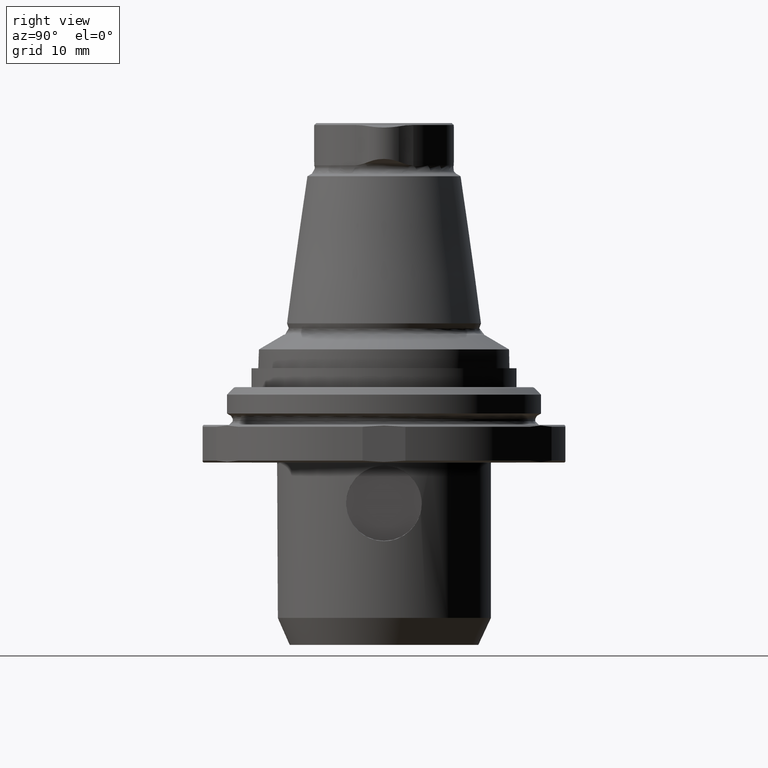
[diagram: clean part render]
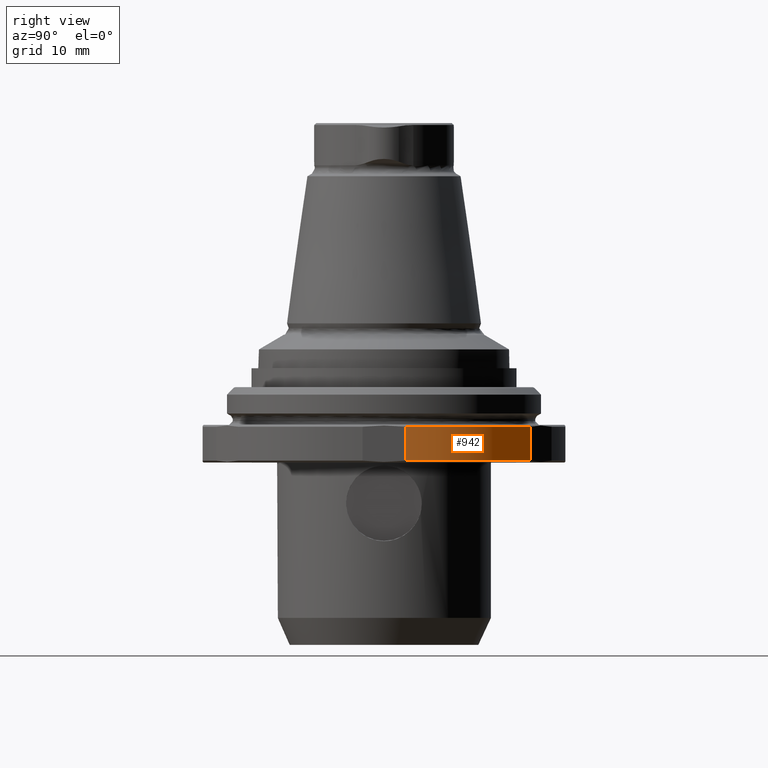
[diagram: same view with one face highlighted and labeled with its STEP entity id]
A machine part, right view. The second image highlights one B-rep face of the part: STEP entity #942.
In plain terms, the highlighted cylindrical surface (partial cylindrical patch) has radius 29 mm, axis along (-0, -0, -1).
Its self-contained STEP definition (entity closure, byte-faithful):
#31=LINE('',#1607,#59);
#32=LINE('',#1611,#60);
#59=VECTOR('',#1242,1000.);
#60=VECTOR('',#1247,1000.);
#138=CIRCLE('',#1034,29.);
#144=CIRCLE('',#1052,29.);
#262=ORIENTED_EDGE('',*,*,#483,.F.);
#263=ORIENTED_EDGE('',*,*,#484,.T.);
#264=ORIENTED_EDGE('',*,*,#458,.T.);
#265=ORIENTED_EDGE('',*,*,#482,.T.);
#458=EDGE_CURVE('',#586,#585,#138,.T.);
#482=EDGE_CURVE('',#585,#598,#31,.T.);
#483=EDGE_CURVE('',#599,#598,#144,.T.);
#484=EDGE_CURVE('',#599,#586,#32,.F.);
#585=VERTEX_POINT('',#1537);
#586=VERTEX_POINT('',#1539);
#598=VERTEX_POINT('',#1606);
#599=VERTEX_POINT('',#1610);
#730=EDGE_LOOP('',(#262,#263,#264,#265));
#830=FACE_BOUND('',#730,.T.);
#899=CYLINDRICAL_SURFACE('',#1051,29.);
#942=ADVANCED_FACE('',(#830),#899,.T.);
#1034=AXIS2_PLACEMENT_3D('',#1538,#1197,#1198);
#1051=AXIS2_PLACEMENT_3D('',#1608,#1243,#1244);
#1052=AXIS2_PLACEMENT_3D('',#1609,#1245,#1246);
#1197=DIRECTION('',(-5.20001084984554E-33,-4.76419527885826E-18,-1.));
#1198=DIRECTION('',(-1.,0.,0.));
#1242=DIRECTION('',(-5.20001084984554E-33,-4.76419527885826E-18,-1.));
#1243=DIRECTION('',(-5.20001084984554E-33,-4.76419527885826E-18,-1.));
#1244=DIRECTION('',(-1.,0.,0.));
#1245=DIRECTION('',(-5.20001084984554E-33,-4.76419527885826E-18,-1.));
#1246=DIRECTION('',(-1.,0.,0.));
#1247=DIRECTION('',(-5.20001084984554E-33,-4.76419527885826E-18,-1.));
#1537=CARTESIAN_POINT('',(28.8,3.39999999999998,-1.29592921435213));
#1538=CARTESIAN_POINT('',(-1.56000325495366E-33,-1.42925858365748E-18,-1.29592921435213));
#1539=CARTESIAN_POINT('',(17.3444863728671,23.2415316289919,-1.29592921435213));
#1606=CARTESIAN_POINT('',(28.8,3.39999999999998,-6.69592921435213));
#1607=CARTESIAN_POINT('',(28.8,3.39999999999998,-0.99592921435213));
#1608=CARTESIAN_POINT('',(0.,0.,-0.99592921435213));
#1609=CARTESIAN_POINT('',(-2.96400618441196E-32,-2.7155913089492E-17,-6.69592921435213));
#1610=CARTESIAN_POINT('',(17.3444863728671,23.2415316289919,-6.69592921435213));
#1611=CARTESIAN_POINT('',(17.3444863728671,23.2415316289919,-0.99592921435213));